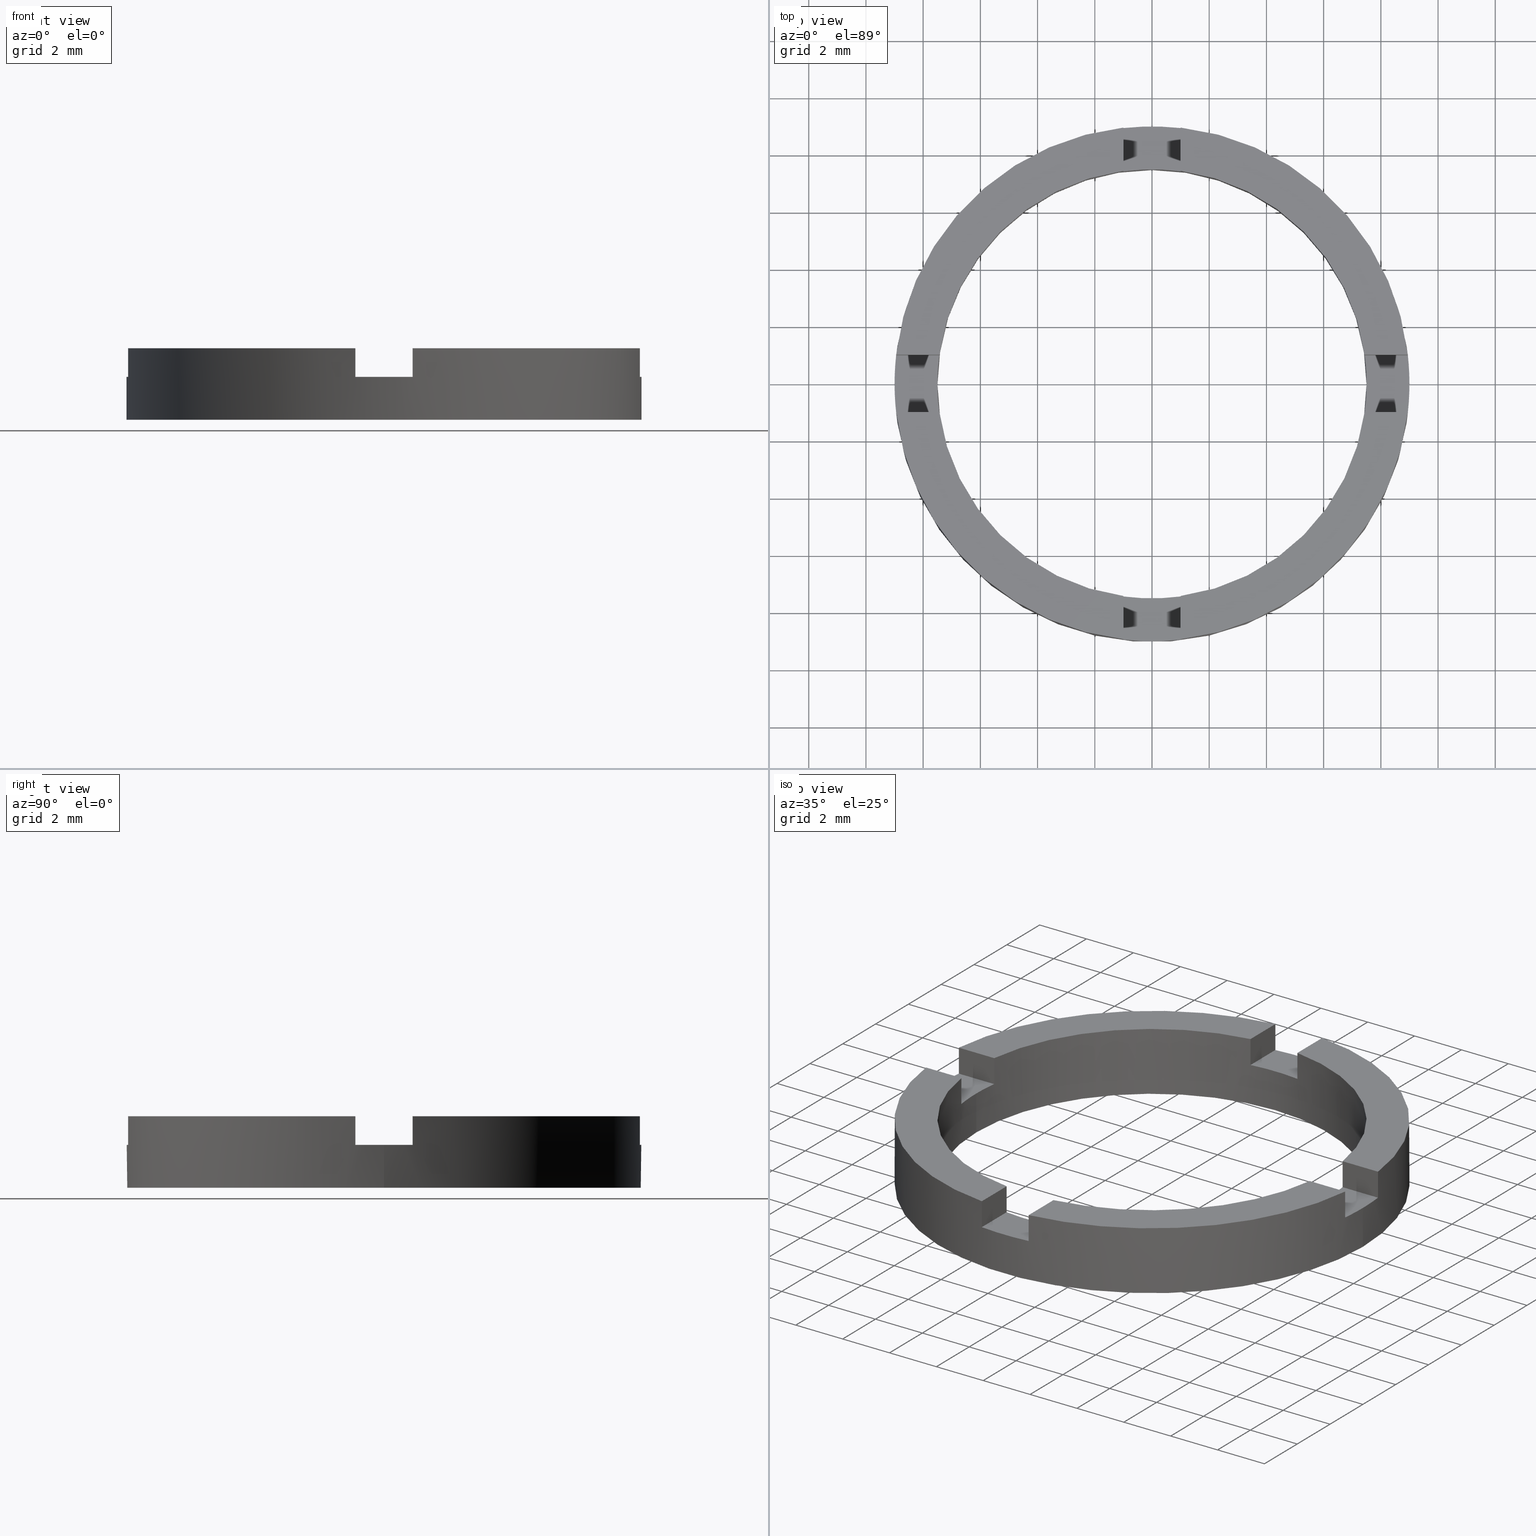
[diagram: canonical four-view strip — front | top / right | iso, engineering-drawing reading convention]
A machine part, canonical four-view strip (front | top / right | iso — engineering-drawing reading convention). The complete STEP part file that produces these views, byte-faithful:
ISO-10303-21;
HEADER;
FILE_DESCRIPTION (( 'STEP AP203' ),
    '1' );
FILE_NAME ('514043.step',
    '2024-12-26T02:32:06',
    ( 'MSI' ),
    ( '' ),
    'SwSTEP 2.0',
    'SolidWorks 2020',
    '' );
FILE_SCHEMA (( 'CONFIG_CONTROL_DESIGN' ));
ENDSEC;

DATA;
#1 = EDGE_CURVE ( 'NONE', #127, #153, #191, .T. ) ;
#2 = CARTESIAN_POINT ( 'NONE',  ( 0.000000000000000000, 0.000000000000000000, 1.500000000000000000 ) ) ;
#3 = ORIENTED_EDGE ( 'NONE', *, *, #250, .T. ) ;
#4 = AXIS2_PLACEMENT_3D ( 'NONE', #363, #245, #428 ) ;
#5 = CARTESIAN_POINT ( 'NONE',  ( -3.734474149672297082E-15, -1.000000000000001110, 1.500000000000000000 ) ) ;
#6 = AXIS2_PLACEMENT_3D ( 'NONE', #539, #782, #107 ) ;
#7 = CARTESIAN_POINT ( 'NONE',  ( 0.000000000000000000, 0.000000000000000000, 2.500000000000000000 ) ) ;
#8 = PLANE ( 'NONE',  #232 ) ;
#9 = DIRECTION ( 'NONE',  ( 1.000000000000000000, 0.000000000000000000, -0.000000000000000000 ) ) ;
#10 = CARTESIAN_POINT ( 'NONE',  ( -0.9999999999999986677, 0.000000000000000000, 2.500000000000000000 ) ) ;
#11 = EDGE_CURVE ( 'NONE', #680, #598, #438, .T. ) ;
#12 = DIRECTION ( 'NONE',  ( 0.000000000000000000, 0.000000000000000000, -1.000000000000000000 ) ) ;
#13 = DIRECTION ( 'NONE',  ( -0.000000000000000000, -0.000000000000000000, 1.000000000000000000 ) ) ;
#14 = DIRECTION ( 'NONE',  ( 0.000000000000000000, -0.000000000000000000, -1.000000000000000000 ) ) ;
#15 = CARTESIAN_POINT ( 'NONE',  ( 0.000000000000000000, 0.000000000000000000, 2.500000000000000000 ) ) ;
#16 = DIRECTION ( 'NONE',  ( -0.000000000000000000, 0.000000000000000000, 1.000000000000000000 ) ) ;
#17 = CARTESIAN_POINT ( 'NONE',  ( 3.734474149672289194E-15, 0.9999999999999988898, 1.500000000000000000 ) ) ;
#18 = EDGE_CURVE ( 'NONE', #570, #53, #423, .T. ) ;
#19 = EDGE_CURVE ( 'NONE', #147, #575, #700, .T. ) ;
#20 = APPROVAL_STATUS ( 'not_yet_approved' ) ;
#21 = CARTESIAN_POINT ( 'NONE',  ( -7.500000000000000000, 0.000000000000000000, 1.500000000000000000 ) ) ;
#22 = DIRECTION ( 'NONE',  ( -3.734474149672293138E-15, -1.000000000000000000, 0.000000000000000000 ) ) ;
#23 = CARTESIAN_POINT ( 'NONE',  ( 0.000000000000000000, 0.000000000000000000, 1.500000000000000000 ) ) ;
#24 = DIRECTION ( 'NONE',  ( -0.000000000000000000, 0.000000000000000000, 1.000000000000000000 ) ) ;
#25 = CC_DESIGN_DATE_AND_TIME_ASSIGNMENT ( #378, #473, ( #134 ) ) ;
#26 = DIRECTION ( 'NONE',  ( 0.000000000000000000, 0.000000000000000000, 1.000000000000000000 ) ) ;
#27 = EDGE_CURVE ( 'NONE', #53, #309, #710, .T. ) ;
#28 = AXIS2_PLACEMENT_3D ( 'NONE', #776, #416, #235 ) ;
#29 = CARTESIAN_POINT ( 'NONE',  ( -0.9999999999999986677, 7.433034373659253013, 1.500000000000000000 ) ) ;
#30 = CARTESIAN_POINT ( 'NONE',  ( -7.433034373659256566, -0.9999999999999733546, 1.500000000000000000 ) ) ;
#31 = DIRECTION ( 'NONE',  ( 1.000000000000000000, 0.000000000000000000, 0.000000000000000000 ) ) ;
#32 = CARTESIAN_POINT ( 'NONE',  ( 1.000000000000001332, -8.944271909999157444, 1.500000000000000000 ) ) ;
#33 = CARTESIAN_POINT ( 'NONE',  ( 0.000000000000000000, 0.000000000000000000, 0.000000000000000000 ) ) ;
#34 = AXIS2_PLACEMENT_3D ( 'NONE', #534, #26, #603 ) ;
#35 = DIRECTION ( 'NONE',  ( 1.000000000000000000, 0.000000000000000000, 0.000000000000000000 ) ) ;
#36 = AXIS2_PLACEMENT_3D ( 'NONE', #515, #268, #759 ) ;
#37 = ADVANCED_FACE ( 'NONE', ( #430 ), #295, .T. ) ;
#38 = CARTESIAN_POINT ( 'NONE',  ( 8.944271909999153891, -1.000000000000034417, 1.500000000000000000 ) ) ;
#39 = EDGE_CURVE ( 'NONE', #424, #675, #693, .T. ) ;
#40 = ORIENTED_EDGE ( 'NONE', *, *, #748, .F. ) ;
#41 = EDGE_CURVE ( 'NONE', #58, #157, #703, .T. ) ;
#42 = VERTEX_POINT ( 'NONE', #366 ) ;
#43 = ORIENTED_EDGE ( 'NONE', *, *, #505, .T. ) ;
#44 =( LENGTH_UNIT ( ) NAMED_UNIT ( * ) SI_UNIT ( .MILLI., .METRE. ) );
#45 = PLANE ( 'NONE',  #717 ) ;
#46 = ORIENTED_EDGE ( 'NONE', *, *, #233, .F. ) ;
#47 = DIRECTION ( 'NONE',  ( 0.000000000000000000, 0.000000000000000000, 1.000000000000000000 ) ) ;
#48 = ORIENTED_EDGE ( 'NONE', *, *, #1, .T. ) ;
#49 = ORIENTED_EDGE ( 'NONE', *, *, #445, .T. ) ;
#50 = VERTEX_POINT ( 'NONE', #151 ) ;
#51 = DIRECTION ( 'NONE',  ( -1.000000000000000000, 0.000000000000000000, 0.000000000000000000 ) ) ;
#52 = AXIS2_PLACEMENT_3D ( 'NONE', #63, #385, #248 ) ;
#53 = VERTEX_POINT ( 'NONE', #602 ) ;
#54 = EDGE_CURVE ( 'NONE', #675, #582, #685, .T. ) ;
#55 = CARTESIAN_POINT ( 'NONE',  ( -0.9999999999999986677, 0.000000000000000000, 1.500000000000000000 ) ) ;
#56 = PLANE ( 'NONE',  #532 ) ;
#57 = VERTEX_POINT ( 'NONE', #461 ) ;
#58 = VERTEX_POINT ( 'NONE', #222 ) ;
#59 = ADVANCED_FACE ( 'NONE', ( #418 ), #708, .T. ) ;
#60 = ORIENTED_EDGE ( 'NONE', *, *, #220, .T. ) ;
#61 = CARTESIAN_POINT ( 'NONE',  ( -0.9999999999999986677, 0.000000000000000000, 2.500000000000000000 ) ) ;
#62 = ORIENTED_EDGE ( 'NONE', *, *, #574, .F. ) ;
#63 = CARTESIAN_POINT ( 'NONE',  ( 0.000000000000000000, 0.000000000000000000, 0.000000000000000000 ) ) ;
#64 = ORIENTED_EDGE ( 'NONE', *, *, #704, .T. ) ;
#65 = ORIENTED_EDGE ( 'NONE', *, *, #195, .F. ) ;
#66 = CARTESIAN_POINT ( 'NONE',  ( 7.500000000000000000, 9.184850993605147944E-16, 0.000000000000000000 ) ) ;
#67 = ORIENTED_EDGE ( 'NONE', *, *, #292, .T. ) ;
#68 = ADVANCED_FACE ( 'NONE', ( #681 ), #723, .T. ) ;
#69 = AXIS2_PLACEMENT_3D ( 'NONE', #537, #439, #283 ) ;
#70 = DIRECTION ( 'NONE',  ( 0.000000000000000000, 0.000000000000000000, 1.000000000000000000 ) ) ;
#71 = ORIENTED_EDGE ( 'NONE', *, *, #649, .F. ) ;
#72 = CARTESIAN_POINT ( 'NONE',  ( 0.000000000000000000, 0.000000000000000000, 1.500000000000000000 ) ) ;
#73 = CARTESIAN_POINT ( 'NONE',  ( 3.734474149672289194E-15, 0.9999999999999988898, 1.500000000000000000 ) ) ;
#74 = ORIENTED_EDGE ( 'NONE', *, *, #632, .F. ) ;
#75 = ORIENTED_EDGE ( 'NONE', *, *, #686, .T. ) ;
#76 = CARTESIAN_POINT ( 'NONE',  ( -0.9999999999999986677, -8.944271909999157444, 1.500000000000000000 ) ) ;
#77 = DIRECTION ( 'NONE',  ( 1.000000000000000000, 0.000000000000000000, 0.000000000000000000 ) ) ;
#78 = ORIENTED_EDGE ( 'NONE', *, *, #538, .F. ) ;
#79 = DIRECTION ( 'NONE',  ( 1.000000000000000000, 0.000000000000000000, -0.000000000000000000 ) ) ;
#80 = EDGE_LOOP ( 'NONE', ( #596, #329, #517, #165 ) ) ;
#81 = CARTESIAN_POINT ( 'NONE',  ( 0.000000000000000000, 0.000000000000000000, 2.500000000000000000 ) ) ;
#82 = EDGE_LOOP ( 'NONE', ( #616, #146, #589, #429, #316, #304, #94, #660, #322, #89, #346, #409 ) ) ;
#83 = CLOSED_SHELL ( 'NONE', ( #750, #68, #465, #336, #516, #350, #599, #760, #673, #122, #744, #541, #502, #282, #241, #546, #357, #701, #37, #690, #59 ) ) ;
#84 = CALENDAR_DATE ( 2024, 26, 12 ) ;
#85 = EDGE_CURVE ( 'NONE', #426, #498, #198, .T. ) ;
#86 = CARTESIAN_POINT ( 'NONE',  ( -8.944271909999153891, 1.000000000000032419, 1.500000000000000000 ) ) ;
#87 = ORIENTED_EDGE ( 'NONE', *, *, #405, .T. ) ;
#88 = PERSON_AND_ORGANIZATION ( #580, #354 ) ;
#89 = ORIENTED_EDGE ( 'NONE', *, *, #447, .T. ) ;
#90 = DATE_AND_TIME ( #351, #353 ) ;
#91 = DIRECTION ( 'NONE',  ( -0.000000000000000000, 0.000000000000000000, 1.000000000000000000 ) ) ;
#92 = ORIENTED_EDGE ( 'NONE', *, *, #240, .T. ) ;
#93 = ORIENTED_EDGE ( 'NONE', *, *, #434, .T. ) ;
#94 = ORIENTED_EDGE ( 'NONE', *, *, #284, .F. ) ;
#95 = APPROVAL_DATE_TIME ( #367, #216 ) ;
#96 = CARTESIAN_POINT ( 'NONE',  ( -0.9999999999999986677, 8.944271909999157444, 2.500000000000000000 ) ) ;
#97 = ORIENTED_EDGE ( 'NONE', *, *, #777, .T. ) ;
#98 = EDGE_CURVE ( 'NONE', #42, #307, #695, .T. ) ;
#99 = PERSON_AND_ORGANIZATION ( #580, #354 ) ;
#100 = ORIENTED_EDGE ( 'NONE', *, *, #18, .F. ) ;
#101 = DATE_AND_TIME ( #630, #111 ) ;
#102 = LINE ( 'NONE', #568, #370 ) ;
#103 = DIRECTION ( 'NONE',  ( 1.000000000000000000, -3.734474149672292349E-15, 0.000000000000000000 ) ) ;
#104 = VERTEX_POINT ( 'NONE', #727 ) ;
#105 = CALENDAR_DATE ( 2024, 26, 12 ) ;
#106 = CIRCLE ( 'NONE', #342, 9.000000000000000000 ) ;
#107 = DIRECTION ( 'NONE',  ( 1.000000000000000000, 0.000000000000000000, 0.000000000000000000 ) ) ;
#108 = ORIENTED_EDGE ( 'NONE', *, *, #371, .T. ) ;
#109 = FACE_OUTER_BOUND ( 'NONE', #676, .T. ) ;
#110 = AXIS2_PLACEMENT_3D ( 'NONE', #261, #266, #768 ) ;
#111 = LOCAL_TIME ( 10, 32, 6.000000000000000000, #345 ) ;
#112 = CIRCLE ( 'NONE', #206, 9.000000000000000000 ) ;
#113 = AXIS2_PLACEMENT_3D ( 'NONE', #33, #565, #77 ) ;
#114 = FACE_OUTER_BOUND ( 'NONE', #412, .T. ) ;
#115 = EDGE_CURVE ( 'NONE', #411, #185, #186, .T. ) ;
#116 = LOCAL_TIME ( 10, 32, 6.000000000000000000, #622 ) ;
#117 = ORIENTED_EDGE ( 'NONE', *, *, #284, .T. ) ;
#118 = APPROVAL_DATE_TIME ( #101, #218 ) ;
#119 = ORIENTED_EDGE ( 'NONE', *, *, #240, .F. ) ;
#120 = COORDINATED_UNIVERSAL_TIME_OFFSET ( 8, 0, .AHEAD. ) ;
#121 = VECTOR ( 'NONE', #290, 1000.000000000000000 ) ;
#122 = ADVANCED_FACE ( 'NONE', ( #711 ), #525, .T. ) ;
#123 = ORIENTED_EDGE ( 'NONE', *, *, #445, .F. ) ;
#124 = FACE_BOUND ( 'NONE', #318, .T. ) ;
#125 = AXIS2_PLACEMENT_3D ( 'NONE', #762, #559, #177 ) ;
#126 = CIRCLE ( 'NONE', #666, 9.000000000000000000 ) ;
#127 = VERTEX_POINT ( 'NONE', #231 ) ;
#128 = FACE_OUTER_BOUND ( 'NONE', #772, .T. ) ;
#129 = CARTESIAN_POINT ( 'NONE',  ( 0.000000000000000000, 0.000000000000000000, 2.500000000000000000 ) ) ;
#130 = ORIENTED_EDGE ( 'NONE', *, *, #490, .F. ) ;
#131 = CIRCLE ( 'NONE', #213, 9.000000000000000000 ) ;
#132 = FACE_OUTER_BOUND ( 'NONE', #80, .T. ) ;
#133 = LINE ( 'NONE', #308, #631 ) ;
#134 = SECURITY_CLASSIFICATION ( '', '', #767 ) ;
#135 = CYLINDRICAL_SURFACE ( 'NONE', #256, 7.500000000000000000 ) ;
#136 = DIRECTION ( 'NONE',  ( 1.000000000000000000, 0.000000000000000000, 0.000000000000000000 ) ) ;
#137 = DIRECTION ( 'NONE',  ( -0.000000000000000000, -0.000000000000000000, 1.000000000000000000 ) ) ;
#138 = CC_DESIGN_PERSON_AND_ORGANIZATION_ASSIGNMENT ( #614, #625, ( #542 ) ) ;
#139 = DIRECTION ( 'NONE',  ( 0.000000000000000000, -0.000000000000000000, -1.000000000000000000 ) ) ;
#140 = LINE ( 'NONE', #17, #659 ) ;
#141 = EDGE_CURVE ( 'NONE', #263, #127, #159, .T. ) ;
#142 = EDGE_CURVE ( 'NONE', #50, #157, #454, .T. ) ;
#143 = DIRECTION ( 'NONE',  ( -0.000000000000000000, -0.000000000000000000, 1.000000000000000000 ) ) ;
#144 = CARTESIAN_POINT ( 'NONE',  ( -0.9999999999999986677, 7.433034373659253013, 1.500000000000000000 ) ) ;
#145 = CARTESIAN_POINT ( 'NONE',  ( 0.000000000000000000, 0.000000000000000000, 2.500000000000000000 ) ) ;
#146 = ORIENTED_EDGE ( 'NONE', *, *, #18, .T. ) ;
#147 = VERTEX_POINT ( 'NONE', #624 ) ;
#148 = DIRECTION ( 'NONE',  ( -0.000000000000000000, -0.000000000000000000, 1.000000000000000000 ) ) ;
#149 = EDGE_CURVE ( 'NONE', #176, #691, #164, .T. ) ;
#150 = EDGE_CURVE ( 'NONE', #313, #50, #689, .T. ) ;
#151 = CARTESIAN_POINT ( 'NONE',  ( 7.500000000000000000, 9.184850993605147944E-16, 1.500000000000000000 ) ) ;
#152 = DIRECTION ( 'NONE',  ( 1.000000000000000000, 0.000000000000000000, 0.000000000000000000 ) ) ;
#153 = VERTEX_POINT ( 'NONE', #719 ) ;
#154 = EDGE_LOOP ( 'NONE', ( #449, #200, #333, #420 ) ) ;
#155 = EDGE_LOOP ( 'NONE', ( #431, #340, #40, #604 ) ) ;
#156 = CARTESIAN_POINT ( 'NONE',  ( -0.9999999999999986677, -7.433034373659253013, 2.500000000000000000 ) ) ;
#157 = VERTEX_POINT ( 'NONE', #66 ) ;
#158 = APPLICATION_PROTOCOL_DEFINITION ( 'international standard', 'config_control_design', 1994, #230 ) ;
#159 = LINE ( 'NONE', #303, #162 ) ;
#160 = DIRECTION ( 'NONE',  ( -3.734474149672293138E-15, -1.000000000000000000, 0.000000000000000000 ) ) ;
#161 = VERTEX_POINT ( 'NONE', #487 ) ;
#162 = VECTOR ( 'NONE', #635, 1000.000000000000000 ) ;
#163 = EDGE_LOOP ( 'NONE', ( #238, #298, #587, #239 ) ) ;
#164 = LINE ( 'NONE', #270, #712 ) ;
#165 = ORIENTED_EDGE ( 'NONE', *, *, #343, .F. ) ;
#166 = CARTESIAN_POINT ( 'NONE',  ( -8.944271909999160997, -0.9999999999999676925, 1.500000000000000000 ) ) ;
#167 = ORIENTED_EDGE ( 'NONE', *, *, #490, .T. ) ;
#168 = AXIS2_PLACEMENT_3D ( 'NONE', #265, #260, #305 ) ;
#169 = VERTEX_POINT ( 'NONE', #156 ) ;
#170 = APPLICATION_PROTOCOL_DEFINITION ( 'international standard', 'config_control_design', 1994, #394 ) ;
#171 = VECTOR ( 'NONE', #566, 1000.000000000000000 ) ;
#172 = CARTESIAN_POINT ( 'NONE',  ( 1.000000000000001332, 8.944271909999157444, 1.500000000000000000 ) ) ;
#173 = ORIENTED_EDGE ( 'NONE', *, *, #576, .T. ) ;
#174 = LINE ( 'NONE', #166, #193 ) ;
#175 = EDGE_LOOP ( 'NONE', ( #123, #683, #75, #97, #317, #64 ) ) ;
#176 = VERTEX_POINT ( 'NONE', #645 ) ;
#177 = DIRECTION ( 'NONE',  ( 0.000000000000000000, 0.000000000000000000, -1.000000000000000000 ) ) ;
#178 = ORIENTED_EDGE ( 'NONE', *, *, #458, .T. ) ;
#179 = CARTESIAN_POINT ( 'NONE',  ( -0.9999999999999986677, 0.000000000000000000, 1.500000000000000000 ) ) ;
#180 = VECTOR ( 'NONE', #321, 1000.000000000000000 ) ;
#181 = PLANE ( 'NONE',  #522 ) ;
#182 = EDGE_LOOP ( 'NONE', ( #698, #663, #178, #338 ) ) ;
#183 = LINE ( 'NONE', #774, #448 ) ;
#184 = DIRECTION ( 'NONE',  ( 0.000000000000000000, 0.000000000000000000, 1.000000000000000000 ) ) ;
#185 = VERTEX_POINT ( 'NONE', #531 ) ;
#186 = LINE ( 'NONE', #76, #427 ) ;
#187 = CARTESIAN_POINT ( 'NONE',  ( -0.9999999999999986677, -7.433034373659253013, 1.500000000000000000 ) ) ;
#188 = LINE ( 'NONE', #229, #441 ) ;
#189 = CARTESIAN_POINT ( 'NONE',  ( 0.000000000000000000, 0.000000000000000000, 2.500000000000000000 ) ) ;
#190 = LINE ( 'NONE', #521, #453 ) ;
#191 = LINE ( 'NONE', #228, #180 ) ;
#192 = CARTESIAN_POINT ( 'NONE',  ( 9.000000000000000000, 1.102182119232617714E-15, 1.500000000000000000 ) ) ;
#193 = VECTOR ( 'NONE', #733, 1000.000000000000000 ) ;
#194 = FACE_OUTER_BOUND ( 'NONE', #175, .T. ) ;
#195 = EDGE_CURVE ( 'NONE', #422, #161, #174, .T. ) ;
#196 = DIRECTION ( 'NONE',  ( 1.000000000000000000, 0.000000000000000000, 0.000000000000000000 ) ) ;
#197 = EDGE_CURVE ( 'NONE', #535, #424, #451, .T. ) ;
#198 = CIRCLE ( 'NONE', #761, 7.500000000000000000 ) ;
#199 = DIRECTION ( 'NONE',  ( 1.000000000000000000, -3.734474149672292349E-15, 0.000000000000000000 ) ) ;
#200 = ORIENTED_EDGE ( 'NONE', *, *, #390, .F. ) ;
#201 = CIRCLE ( 'NONE', #6, 7.500000000000000000 ) ;
#202 = LINE ( 'NONE', #528, #478 ) ;
#203 = LINE ( 'NONE', #29, #741 ) ;
#204 = VECTOR ( 'NONE', #137, 1000.000000000000000 ) ;
#205 = LINE ( 'NONE', #32, #736 ) ;
#206 = AXIS2_PLACEMENT_3D ( 'NONE', #450, #294, #757 ) ;
#207 = EDGE_CURVE ( 'NONE', #718, #176, #188, .T. ) ;
#208 = LINE ( 'NONE', #601, #204 ) ;
#209 = FACE_OUTER_BOUND ( 'NONE', #155, .T. ) ;
#210 = CIRCLE ( 'NONE', #356, 7.500000000000000000 ) ;
#211 = VECTOR ( 'NONE', #734, 1000.000000000000000 ) ;
#212 = DIRECTION ( 'NONE',  ( 1.000000000000000000, 0.000000000000000000, 0.000000000000000000 ) ) ;
#213 = AXIS2_PLACEMENT_3D ( 'NONE', #536, #781, #662 ) ;
#214 = DIRECTION ( 'NONE',  ( -0.000000000000000000, 0.000000000000000000, 1.000000000000000000 ) ) ;
#215 = DIRECTION ( 'NONE',  ( 1.000000000000000000, 1.065814103640150279E-14, 0.000000000000000000 ) ) ;
#216 = APPROVAL ( #20, 'δָ��' ) ;
#217 = CARTESIAN_POINT ( 'NONE',  ( 0.000000000000000000, 0.000000000000000000, 2.500000000000000000 ) ) ;
#218 = APPROVAL ( #484, 'δָ��' ) ;
#219 = DIRECTION ( 'NONE',  ( 1.000000000000000000, 0.000000000000000000, 0.000000000000000000 ) ) ;
#220 = EDGE_CURVE ( 'NONE', #435, #153, #183, .T. ) ;
#221 = PLANE ( 'NONE',  #511 ) ;
#222 = CARTESIAN_POINT ( 'NONE',  ( -7.500000000000000000, 0.000000000000000000, 0.000000000000000000 ) ) ;
#223 = CARTESIAN_POINT ( 'NONE',  ( 1.000000000000001332, 8.944271909999157444, 1.500000000000000000 ) ) ;
#224 = ORIENTED_EDGE ( 'NONE', *, *, #460, .F. ) ;
#225 = ORIENTED_EDGE ( 'NONE', *, *, #227, .T. ) ;
#226 = APPROVAL_ROLE ( '' ) ;
#227 = EDGE_CURVE ( 'NONE', #302, #153, #442, .T. ) ;
#228 = CARTESIAN_POINT ( 'NONE',  ( 3.734474149672289194E-15, 0.9999999999999988898, 2.500000000000000000 ) ) ;
#229 = CARTESIAN_POINT ( 'NONE',  ( 7.433034373659249461, -1.000000000000028866, 1.500000000000000000 ) ) ;
#230 = APPLICATION_CONTEXT ( 'configuration controlled 3d designs of mechanical parts and assemblies' ) ;
#231 = CARTESIAN_POINT ( 'NONE',  ( -8.944271909999153891, 1.000000000000032419, 2.500000000000000000 ) ) ;
#232 = AXIS2_PLACEMENT_3D ( 'NONE', #488, #24, #271 ) ;
#233 = EDGE_CURVE ( 'NONE', #575, #169, #720, .T. ) ;
#234 = CARTESIAN_POINT ( 'NONE',  ( 0.000000000000000000, 0.000000000000000000, 1.500000000000000000 ) ) ;
#235 = DIRECTION ( 'NONE',  ( -1.000000000000000000, 0.000000000000000000, 0.000000000000000000 ) ) ;
#236 = PRODUCT_DEFINITION_SHAPE ( 'NONE', 'NONE',  #530 ) ;
#237 = DIRECTION ( 'NONE',  ( -0.000000000000000000, -0.000000000000000000, 1.000000000000000000 ) ) ;
#238 = ORIENTED_EDGE ( 'NONE', *, *, #275, .F. ) ;
#239 = ORIENTED_EDGE ( 'NONE', *, *, #39, .T. ) ;
#240 = EDGE_CURVE ( 'NONE', #147, #300, #190, .T. ) ;
#241 = ADVANCED_FACE ( 'NONE', ( #194 ), #8, .T. ) ;
#242 = ORIENTED_EDGE ( 'NONE', *, *, #244, .F. ) ;
#243 = PRODUCT_RELATED_PRODUCT_CATEGORY ( 'detail', '', ( #542 ) ) ;
#244 = EDGE_CURVE ( 'NONE', #583, #422, #476, .T. ) ;
#245 = DIRECTION ( 'NONE',  ( 1.000000000000000000, 0.000000000000000000, 0.000000000000000000 ) ) ;
#246 = EDGE_LOOP ( 'NONE', ( #380, #595, #705, #725 ) ) ;
#247 = CARTESIAN_POINT ( 'NONE',  ( -0.9999999999999986677, 8.944271909999157444, 1.500000000000000000 ) ) ;
#248 = DIRECTION ( 'NONE',  ( 1.000000000000000000, 0.000000000000000000, 0.000000000000000000 ) ) ;
#249 = EDGE_CURVE ( 'NONE', #104, #300, #728, .T. ) ;
#250 = EDGE_CURVE ( 'NONE', #692, #302, #203, .T. ) ;
#251 = DIRECTION ( 'NONE',  ( 0.000000000000000000, -0.000000000000000000, -1.000000000000000000 ) ) ;
#252 = ORIENTED_EDGE ( 'NONE', *, *, #115, .T. ) ;
#253 = CARTESIAN_POINT ( 'NONE',  ( 0.000000000000000000, 0.000000000000000000, 2.500000000000000000 ) ) ;
#254 = CARTESIAN_POINT ( 'NONE',  ( 1.000000000000001332, 7.433034373659253013, 1.500000000000000000 ) ) ;
#255 = CARTESIAN_POINT ( 'NONE',  ( 0.000000000000000000, 0.000000000000000000, 0.000000000000000000 ) ) ;
#256 = AXIS2_PLACEMENT_3D ( 'NONE', #499, #540, #552 ) ;
#257 = CARTESIAN_POINT ( 'NONE',  ( -7.433034373659249461, 1.000000000000026645, 1.500000000000000000 ) ) ;
#258 = AXIS2_PLACEMENT_3D ( 'NONE', #557, #722, #79 ) ;
#259 = DIRECTION ( 'NONE',  ( -0.000000000000000000, -0.000000000000000000, 1.000000000000000000 ) ) ;
#260 = DIRECTION ( 'NONE',  ( 0.000000000000000000, 0.000000000000000000, 1.000000000000000000 ) ) ;
#261 = CARTESIAN_POINT ( 'NONE',  ( 0.000000000000000000, 0.000000000000000000, 0.000000000000000000 ) ) ;
#262 = DIRECTION ( 'NONE',  ( -0.000000000000000000, 0.000000000000000000, 1.000000000000000000 ) ) ;
#263 = VERTEX_POINT ( 'NONE', #86 ) ;
#264 = CARTESIAN_POINT ( 'NONE',  ( 8.944271909999160997, 0.9999999999999655831, 1.500000000000000000 ) ) ;
#265 = CARTESIAN_POINT ( 'NONE',  ( 0.000000000000000000, 0.000000000000000000, 2.500000000000000000 ) ) ;
#266 = DIRECTION ( 'NONE',  ( 0.000000000000000000, 0.000000000000000000, 1.000000000000000000 ) ) ;
#267 = EDGE_CURVE ( 'NONE', #313, #426, #467, .T. ) ;
#268 = DIRECTION ( 'NONE',  ( 0.000000000000000000, -0.000000000000000000, -1.000000000000000000 ) ) ;
#269 = AXIS2_PLACEMENT_3D ( 'NONE', #2, #251, #289 ) ;
#270 = CARTESIAN_POINT ( 'NONE',  ( -3.734474149672297082E-15, -1.000000000000001110, 2.500000000000000000 ) ) ;
#271 = DIRECTION ( 'NONE',  ( 1.000000000000000000, 0.000000000000000000, 0.000000000000000000 ) ) ;
#272 = CARTESIAN_POINT ( 'NONE',  ( -8.944271909999160997, -0.9999999999999676925, 1.500000000000000000 ) ) ;
#273 = CARTESIAN_POINT ( 'NONE',  ( 0.000000000000000000, 0.000000000000000000, 2.500000000000000000 ) ) ;
#274 = AXIS2_PLACEMENT_3D ( 'NONE', #529, #91, #152 ) ;
#275 = EDGE_CURVE ( 'NONE', #692, #675, #470, .T. ) ;
#276 = CARTESIAN_POINT ( 'NONE',  ( 1.000000000000001332, 0.000000000000000000, 1.500000000000000000 ) ) ;
#277 = PLANE ( 'NONE',  #417 ) ;
#278 = CARTESIAN_POINT ( 'NONE',  ( -3.734474149672297082E-15, -1.000000000000001110, 1.500000000000000000 ) ) ;
#279 = CC_DESIGN_APPROVAL ( #218, ( #549 ) ) ;
#280 = AXIS2_PLACEMENT_3D ( 'NONE', #234, #262, #408 ) ;
#281 = MANIFOLD_SOLID_BREP ( '�г�-����1', #83 ) ;
#282 = ADVANCED_FACE ( 'NONE', ( #472 ), #331, .F. ) ;
#283 = DIRECTION ( 'NONE',  ( 1.000000000000000000, 0.000000000000000000, 0.000000000000000000 ) ) ;
#284 = EDGE_CURVE ( 'NONE', #582, #127, #735, .T. ) ;
#285 = CC_DESIGN_APPROVAL ( #433, ( #530 ) ) ;
#286 = EDGE_CURVE ( 'NONE', #300, #176, #201, .T. ) ;
#287 = DIRECTION ( 'NONE',  ( -0.000000000000000000, -0.000000000000000000, -1.000000000000000000 ) ) ;
#288 = CARTESIAN_POINT ( 'NONE',  ( -0.9999999999999986677, 8.944271909999157444, 1.500000000000000000 ) ) ;
#289 = DIRECTION ( 'NONE',  ( 1.000000000000000000, 0.000000000000000000, 0.000000000000000000 ) ) ;
#290 = DIRECTION ( 'NONE',  ( 1.000000000000000000, -3.734474149672293138E-15, 0.000000000000000000 ) ) ;
#291 = AXIS2_PLACEMENT_3D ( 'NONE', #588, #475, #518 ) ;
#292 = EDGE_CURVE ( 'NONE', #436, #104, #205, .T. ) ;
#293 = PERSON_AND_ORGANIZATION_ROLE ( 'creator' ) ;
#294 = DIRECTION ( 'NONE',  ( -0.000000000000000000, 0.000000000000000000, 1.000000000000000000 ) ) ;
#295 = PLANE ( 'NONE',  #597 ) ;
#296 = PLANE ( 'NONE',  #586 ) ;
#297 = DIRECTION ( 'NONE',  ( 0.000000000000000000, 1.000000000000000000, -0.000000000000000000 ) ) ;
#298 = ORIENTED_EDGE ( 'NONE', *, *, #512, .T. ) ;
#299 = CARTESIAN_POINT ( 'NONE',  ( -0.9999999999999986677, -8.944271909999157444, 1.500000000000000000 ) ) ;
#300 = VERTEX_POINT ( 'NONE', #324 ) ;
#301 = AXIS2_PLACEMENT_3D ( 'NONE', #72, #139, #215 ) ;
#302 = VERTEX_POINT ( 'NONE', #421 ) ;
#303 = CARTESIAN_POINT ( 'NONE',  ( -8.944271909999153891, 1.000000000000032419, 1.500000000000000000 ) ) ;
#304 = ORIENTED_EDGE ( 'NONE', *, *, #141, .T. ) ;
#305 = DIRECTION ( 'NONE',  ( 1.000000000000000000, 0.000000000000000000, 0.000000000000000000 ) ) ;
#306 = PERSON_AND_ORGANIZATION_ROLE ( 'creator' ) ;
#307 = VERTEX_POINT ( 'NONE', #21 ) ;
#308 = CARTESIAN_POINT ( 'NONE',  ( 1.000000000000001332, 0.000000000000000000, 2.500000000000000000 ) ) ;
#309 = VERTEX_POINT ( 'NONE', #485 ) ;
#310 = ORIENTED_EDGE ( 'NONE', *, *, #343, .T. ) ;
#311 = DIRECTION ( 'NONE',  ( 1.000000000000000000, -1.154631945610162802E-14, 0.000000000000000000 ) ) ;
#312 = ORIENTED_EDGE ( 'NONE', *, *, #149, .F. ) ;
#313 = VERTEX_POINT ( 'NONE', #640 ) ;
#314 = DIRECTION ( 'NONE',  ( 1.000000000000000000, -3.734474149672293138E-15, 0.000000000000000000 ) ) ;
#315 = EDGE_LOOP ( 'NONE', ( #337, #606, #569, #629 ) ) ;
#316 = ORIENTED_EDGE ( 'NONE', *, *, #561, .F. ) ;
#317 = ORIENTED_EDGE ( 'NONE', *, *, #684, .T. ) ;
#318 = EDGE_LOOP ( 'NONE', ( #751, #572 ) ) ;
#319 = CARTESIAN_POINT ( 'NONE',  ( 8.944271909999160997, 0.9999999999999655831, 2.500000000000000000 ) ) ;
#320 = ORIENTED_EDGE ( 'NONE', *, *, #207, .F. ) ;
#321 = DIRECTION ( 'NONE',  ( 1.000000000000000000, -3.734474149672293138E-15, 0.000000000000000000 ) ) ;
#322 = ORIENTED_EDGE ( 'NONE', *, *, #39, .F. ) ;
#323 = EDGE_LOOP ( 'NONE', ( #78, #419, #108, #607 ) ) ;
#324 = CARTESIAN_POINT ( 'NONE',  ( 1.000000000000001332, -7.433034373659253013, 2.500000000000000000 ) ) ;
#325 = ORIENTED_EDGE ( 'NONE', *, *, #41, .F. ) ;
#326 = EDGE_CURVE ( 'NONE', #583, #309, #202, .T. ) ;
#327 = AXIS2_PLACEMENT_3D ( 'NONE', #753, #287, #51 ) ;
#328 = ORIENTED_EDGE ( 'NONE', *, *, #743, .T. ) ;
#329 = ORIENTED_EDGE ( 'NONE', *, *, #652, .T. ) ;
#330 = EDGE_LOOP ( 'NONE', ( #654, #119, #62, #67 ) ) ;
#331 = PLANE ( 'NONE',  #543 ) ;
#332 = ORIENTED_EDGE ( 'NONE', *, *, #141, .F. ) ;
#333 = ORIENTED_EDGE ( 'NONE', *, *, #777, .F. ) ;
#334 = ORIENTED_EDGE ( 'NONE', *, *, #19, .F. ) ;
#335 = LOCAL_TIME ( 10, 32, 6.000000000000000000, #120 ) ;
#336 = ADVANCED_FACE ( 'NONE', ( #738 ), #395, .T. ) ;
#337 = ORIENTED_EDGE ( 'NONE', *, *, #392, .F. ) ;
#338 = ORIENTED_EDGE ( 'NONE', *, *, #233, .T. ) ;
#339 = APPROVAL_DATE_TIME ( #605, #433 ) ;
#340 = ORIENTED_EDGE ( 'NONE', *, *, #576, .F. ) ;
#341 = PERSON_AND_ORGANIZATION ( #580, #354 ) ;
#342 = AXIS2_PLACEMENT_3D ( 'NONE', #217, #612, #136 ) ;
#343 = EDGE_CURVE ( 'NONE', #57, #169, #462, .T. ) ;
#344 = ORIENTED_EDGE ( 'NONE', *, *, #98, .F. ) ;
#345 = COORDINATED_UNIVERSAL_TIME_OFFSET ( 8, 0, .AHEAD. ) ;
#346 = ORIENTED_EDGE ( 'NONE', *, *, #755, .F. ) ;
#347 = SHAPE_DEFINITION_REPRESENTATION ( #236, #670 ) ;
#348 = CARTESIAN_POINT ( 'NONE',  ( 0.000000000000000000, 0.000000000000000000, 0.000000000000000000 ) ) ;
#349 = ORIENTED_EDGE ( 'NONE', *, *, #267, .F. ) ;
#350 = ADVANCED_FACE ( 'NONE', ( #463 ), #277, .T. ) ;
#351 = CALENDAR_DATE ( 2024, 26, 12 ) ;
#352 = COORDINATED_UNIVERSAL_TIME_OFFSET ( 8, 0, .AHEAD. ) ;
#353 = LOCAL_TIME ( 10, 32, 6.000000000000000000, #352 ) ;
#354 = ORGANIZATION ( 'δָ��', 'δָ��', '' ) ;
#355 = DIRECTION ( 'NONE',  ( -0.000000000000000000, 0.000000000000000000, 1.000000000000000000 ) ) ;
#356 = AXIS2_PLACEMENT_3D ( 'NONE', #489, #563, #724 ) ;
#357 = ADVANCED_FACE ( 'NONE', ( #209 ), #45, .F. ) ;
#358 = LINE ( 'NONE', #593, #388 ) ;
#359 = ORIENTED_EDGE ( 'NONE', *, *, #85, .T. ) ;
#360 = LINE ( 'NONE', #61, #665 ) ;
#361 = EDGE_LOOP ( 'NONE', ( #613, #592, #117, #48 ) ) ;
#362 = LINE ( 'NONE', #30, #398 ) ;
#363 = CARTESIAN_POINT ( 'NONE',  ( 1.000000000000001332, 0.000000000000000000, 1.500000000000000000 ) ) ;
#364 = COORDINATED_UNIVERSAL_TIME_OFFSET ( 8, 0, .AHEAD. ) ;
#365 = CIRCLE ( 'NONE', #34, 9.000000000000000000 ) ;
#366 = CARTESIAN_POINT ( 'NONE',  ( -7.433034373659256566, -0.9999999999999733546, 1.500000000000000000 ) ) ;
#367 = DATE_AND_TIME ( #105, #646 ) ;
#368 = VECTOR ( 'NONE', #148, 1000.000000000000000 ) ;
#369 = ORIENTED_EDGE ( 'NONE', *, *, #405, .F. ) ;
#370 = VECTOR ( 'NONE', #103, 1000.000000000000000 ) ;
#371 = EDGE_CURVE ( 'NONE', #426, #598, #731, .T. ) ;
#372 = CARTESIAN_POINT ( 'NONE',  ( 8.944271909999153891, -1.000000000000034417, 2.500000000000000000 ) ) ;
#373 = ORIENTED_EDGE ( 'NONE', *, *, #286, .F. ) ;
#374 = PERSON_AND_ORGANIZATION ( #580, #354 ) ;
#375 = DIRECTION ( 'NONE',  ( -0.000000000000000000, -0.000000000000000000, 1.000000000000000000 ) ) ;
#376 = CARTESIAN_POINT ( 'NONE',  ( 1.000000000000001332, -8.944271909999157444, 1.500000000000000000 ) ) ;
#377 = CIRCLE ( 'NONE', #113, 7.500000000000000000 ) ;
#378 = DATE_AND_TIME ( #617, #116 ) ;
#379 = FACE_OUTER_BOUND ( 'NONE', #246, .T. ) ;
#380 = ORIENTED_EDGE ( 'NONE', *, *, #458, .F. ) ;
#381 = PERSON_AND_ORGANIZATION_ROLE ( 'classification_officer' ) ;
#382 = VECTOR ( 'NONE', #558, 1000.000000000000000 ) ;
#383 = PLANE ( 'NONE',  #291 ) ;
#384 = FACE_OUTER_BOUND ( 'NONE', #707, .T. ) ;
#385 = DIRECTION ( 'NONE',  ( 0.000000000000000000, 0.000000000000000000, 1.000000000000000000 ) ) ;
#386 = CARTESIAN_POINT ( 'NONE',  ( 3.734474149672289194E-15, 0.9999999999999988898, 1.500000000000000000 ) ) ;
#387 = CC_DESIGN_APPROVAL ( #216, ( #134 ) ) ;
#388 = VECTOR ( 'NONE', #747, 1000.000000000000000 ) ;
#389 = LINE ( 'NONE', #397, #382 ) ;
#390 = EDGE_CURVE ( 'NONE', #682, #691, #208, .T. ) ;
#391 = DIRECTION ( 'NONE',  ( -0.000000000000000000, -0.000000000000000000, 1.000000000000000000 ) ) ;
#392 = EDGE_CURVE ( 'NONE', #302, #582, #471, .T. ) ;
#393 = FACE_OUTER_BOUND ( 'NONE', #577, .T. ) ;
#394 = APPLICATION_CONTEXT ( 'configuration controlled 3d designs of mechanical parts and assemblies' ) ;
#395 = PLANE ( 'NONE',  #258 ) ;
#396 = LINE ( 'NONE', #386, #121 ) ;
#397 = CARTESIAN_POINT ( 'NONE',  ( -0.9999999999999986677, 0.000000000000000000, 1.500000000000000000 ) ) ;
#398 = VECTOR ( 'NONE', #742, 1000.000000000000000 ) ;
#399 = CIRCLE ( 'NONE', #745, 9.000000000000000000 ) ;
#400 = CARTESIAN_POINT ( 'NONE',  ( 7.500000000000000000, 9.184850993605147944E-16, 2.500000000000000000 ) ) ;
#401 = LINE ( 'NONE', #276, #626 ) ;
#402 = DATE_TIME_ROLE ( 'creation_date' ) ;
#403 = DIRECTION ( 'NONE',  ( 0.000000000000000000, 1.000000000000000000, -0.000000000000000000 ) ) ;
#404 = AXIS2_PLACEMENT_3D ( 'NONE', #23, #14, #311 ) ;
#405 = EDGE_CURVE ( 'NONE', #307, #435, #210, .T. ) ;
#406 = CARTESIAN_POINT ( 'NONE',  ( 1.000000000000001332, 0.000000000000000000, 2.500000000000000000 ) ) ;
#407 = ORIENTED_EDGE ( 'NONE', *, *, #748, .T. ) ;
#408 = DIRECTION ( 'NONE',  ( 1.000000000000000000, 0.000000000000000000, 0.000000000000000000 ) ) ;
#409 = ORIENTED_EDGE ( 'NONE', *, *, #11, .F. ) ;
#410 = DIRECTION ( 'NONE',  ( 0.000000000000000000, 0.000000000000000000, 1.000000000000000000 ) ) ;
#411 = VERTEX_POINT ( 'NONE', #299 ) ;
#412 = EDGE_LOOP ( 'NONE', ( #100, #778, #573, #773, #609, #224, #252, #506, #65, #242, #591, #43 ) ) ;
#413 = CC_DESIGN_PERSON_AND_ORGANIZATION_ASSIGNMENT ( #643, #293, ( #549 ) ) ;
#414 = ORIENTED_EDGE ( 'NONE', *, *, #286, .T. ) ;
#415 = CYLINDRICAL_SURFACE ( 'NONE', #327, 7.500000000000000000 ) ;
#416 = DIRECTION ( 'NONE',  ( -0.000000000000000000, -0.000000000000000000, -1.000000000000000000 ) ) ;
#417 = AXIS2_PLACEMENT_3D ( 'NONE', #189, #184, #491 ) ;
#418 = FACE_OUTER_BOUND ( 'NONE', #163, .T. ) ;
#419 = ORIENTED_EDGE ( 'NONE', *, *, #85, .F. ) ;
#420 = ORIENTED_EDGE ( 'NONE', *, *, #207, .T. ) ;
#421 = CARTESIAN_POINT ( 'NONE',  ( -0.9999999999999986677, 7.433034373659253013, 2.500000000000000000 ) ) ;
#422 = VERTEX_POINT ( 'NONE', #272 ) ;
#423 = LINE ( 'NONE', #739, #443 ) ;
#424 = VERTEX_POINT ( 'NONE', #223 ) ;
#425 = VECTOR ( 'NONE', #375, 1000.000000000000000 ) ;
#426 = VERTEX_POINT ( 'NONE', #620 ) ;
#427 = VECTOR ( 'NONE', #259, 1000.000000000000000 ) ;
#428 = DIRECTION ( 'NONE',  ( 0.000000000000000000, 0.000000000000000000, -1.000000000000000000 ) ) ;
#429 = ORIENTED_EDGE ( 'NONE', *, *, #326, .F. ) ;
#430 = FACE_OUTER_BOUND ( 'NONE', #315, .T. ) ;
#431 = ORIENTED_EDGE ( 'NONE', *, *, #627, .T. ) ;
#432 = EDGE_LOOP ( 'NONE', ( #642, #524 ) ) ;
#433 = APPROVAL ( #721, 'δָ��' ) ;
#434 = EDGE_CURVE ( 'NONE', #307, #58, #457, .T. ) ;
#435 = VERTEX_POINT ( 'NONE', #257 ) ;
#436 = VERTEX_POINT ( 'NONE', #376 ) ;
#437 = AXIS2_PLACEMENT_3D ( 'NONE', #510, #355, #545 ) ;
#438 = LINE ( 'NONE', #264, #171 ) ;
#439 = DIRECTION ( 'NONE',  ( 0.000000000000000000, -0.000000000000000000, -1.000000000000000000 ) ) ;
#440 = ORIENTED_EDGE ( 'NONE', *, *, #1, .F. ) ;
#441 = VECTOR ( 'NONE', #391, 1000.000000000000000 ) ;
#442 = CIRCLE ( 'NONE', #168, 7.500000000000000000 ) ;
#443 = VECTOR ( 'NONE', #779, 1000.000000000000000 ) ;
#444 = VECTOR ( 'NONE', #520, 1000.000000000000000 ) ;
#445 = EDGE_CURVE ( 'NONE', #313, #680, #396, .T. ) ;
#446 = VECTOR ( 'NONE', #297, 1000.000000000000000 ) ;
#447 = EDGE_CURVE ( 'NONE', #424, #495, #637, .T. ) ;
#448 = VECTOR ( 'NONE', #766, 1000.000000000000000 ) ;
#449 = ORIENTED_EDGE ( 'NONE', *, *, #149, .T. ) ;
#450 = CARTESIAN_POINT ( 'NONE',  ( 0.000000000000000000, 0.000000000000000000, 1.500000000000000000 ) ) ;
#451 = LINE ( 'NONE', #564, #446 ) ;
#452 = UNCERTAINTY_MEASURE_WITH_UNIT (LENGTH_MEASURE( 1.000000000000000082E-05 ), #44, 'distance_accuracy_value', 'NONE');
#453 = VECTOR ( 'NONE', #752, 1000.000000000000000 ) ;
#454 = LINE ( 'NONE', #400, #444 ) ;
#455 = EDGE_LOOP ( 'NONE', ( #312, #373, #749, #328 ) ) ;
#456 = CARTESIAN_POINT ( 'NONE',  ( 1.000000000000001332, 7.433034373659253013, 1.500000000000000000 ) ) ;
#457 = LINE ( 'NONE', #699, #726 ) ;
#458 = EDGE_CURVE ( 'NONE', #411, #575, #389, .T. ) ;
#459 = DIRECTION ( 'NONE',  ( 1.000000000000000000, -3.734474149672293138E-15, 0.000000000000000000 ) ) ;
#460 = EDGE_CURVE ( 'NONE', #411, #436, #634, .T. ) ;
#461 = CARTESIAN_POINT ( 'NONE',  ( -7.433034373659256566, -0.9999999999999733546, 2.500000000000000000 ) ) ;
#462 = CIRCLE ( 'NONE', #497, 7.500000000000000000 ) ;
#463 = FACE_OUTER_BOUND ( 'NONE', #455, .T. ) ;
#464 = VECTOR ( 'NONE', #459, 1000.000000000000000 ) ;
#465 = ADVANCED_FACE ( 'NONE', ( #664 ), #770, .T. ) ;
#466 = PLANE ( 'NONE',  #756 ) ;
#467 = LINE ( 'NONE', #775, #732 ) ;
#468 = DIRECTION ( 'NONE',  ( 1.000000000000000000, 0.000000000000000000, 0.000000000000000000 ) ) ;
#469 = DIRECTION ( 'NONE',  ( 0.000000000000000000, 1.000000000000000000, -0.000000000000000000 ) ) ;
#470 = LINE ( 'NONE', #179, #740 ) ;
#471 = LINE ( 'NONE', #10, #729 ) ;
#472 = FACE_OUTER_BOUND ( 'NONE', #154, .T. ) ;
#473 = DATE_TIME_ROLE ( 'classification_date' ) ;
#474 = AXIS2_PLACEMENT_3D ( 'NONE', #348, #519, #764 ) ;
#475 = DIRECTION ( 'NONE',  ( 1.000000000000000000, 0.000000000000000000, 0.000000000000000000 ) ) ;
#476 = CIRCLE ( 'NONE', #730, 9.000000000000000000 ) ;
#477 = DIRECTION ( 'NONE',  ( -0.000000000000000000, -0.000000000000000000, -1.000000000000000000 ) ) ;
#478 = VECTOR ( 'NONE', #562, 1000.000000000000000 ) ;
#479 = CARTESIAN_POINT ( 'NONE',  ( -0.9999999999999986677, -7.433034373659253013, 1.500000000000000000 ) ) ;
#480 = MECHANICAL_CONTEXT ( 'NONE', #394, 'mechanical' ) ;
#481 = CARTESIAN_POINT ( 'NONE',  ( 1.000000000000001332, 7.433034373659253013, 2.500000000000000000 ) ) ;
#482 = CC_DESIGN_PERSON_AND_ORGANIZATION_ASSIGNMENT ( #88, #381, ( #134 ) ) ;
#483 = DIRECTION ( 'NONE',  ( -0.000000000000000000, -0.000000000000000000, 1.000000000000000000 ) ) ;
#484 = APPROVAL_STATUS ( 'not_yet_approved' ) ;
#485 = CARTESIAN_POINT ( 'NONE',  ( -9.000000000000000000, 0.000000000000000000, 0.000000000000000000 ) ) ;
#486 = PLANE ( 'NONE',  #274 ) ;
#487 = CARTESIAN_POINT ( 'NONE',  ( -8.944271909999160997, -0.9999999999999676925, 2.500000000000000000 ) ) ;
#488 = CARTESIAN_POINT ( 'NONE',  ( 0.000000000000000000, 0.000000000000000000, 1.500000000000000000 ) ) ;
#489 = CARTESIAN_POINT ( 'NONE',  ( 0.000000000000000000, 0.000000000000000000, 1.500000000000000000 ) ) ;
#490 = EDGE_CURVE ( 'NONE', #263, #435, #140, .T. ) ;
#491 = DIRECTION ( 'NONE',  ( 1.000000000000000000, 0.000000000000000000, -0.000000000000000000 ) ) ;
#492 = DIRECTION ( 'NONE',  ( 0.000000000000000000, 1.000000000000000000, -0.000000000000000000 ) ) ;
#493 = DIRECTION ( 'NONE',  ( -3.734474149672292349E-15, -1.000000000000000000, 0.000000000000000000 ) ) ;
#494 =( GEOMETRIC_REPRESENTATION_CONTEXT ( 3 ) GLOBAL_UNCERTAINTY_ASSIGNED_CONTEXT ( ( #452 ) ) GLOBAL_UNIT_ASSIGNED_CONTEXT ( ( #44, #548, #556 ) ) REPRESENTATION_CONTEXT ( 'NONE', 'WORKASPACE' ) );
#495 = VERTEX_POINT ( 'NONE', #641 ) ;
#496 = ORIENTED_EDGE ( 'NONE', *, *, #142, .F. ) ;
#497 = AXIS2_PLACEMENT_3D ( 'NONE', #273, #410, #31 ) ;
#498 = VERTEX_POINT ( 'NONE', #481 ) ;
#499 = CARTESIAN_POINT ( 'NONE',  ( 0.000000000000000000, 0.000000000000000000, 2.500000000000000000 ) ) ;
#500 = DESIGN_CONTEXT ( 'detailed design', #230, 'design' ) ;
#501 = AXIS2_PLACEMENT_3D ( 'NONE', #253, #513, #615 ) ;
#502 = ADVANCED_FACE ( 'NONE', ( #128 ), #296, .T. ) ;
#503 = ORIENTED_EDGE ( 'NONE', *, *, #538, .T. ) ;
#504 = PLANE ( 'NONE',  #4 ) ;
#505 = EDGE_CURVE ( 'NONE', #309, #53, #365, .T. ) ;
#506 = ORIENTED_EDGE ( 'NONE', *, *, #652, .F. ) ;
#507 = DIRECTION ( 'NONE',  ( 1.000000000000000000, -3.734474149672292349E-15, 0.000000000000000000 ) ) ;
#508 = DIRECTION ( 'NONE',  ( -3.734474149672292349E-15, -1.000000000000000000, 0.000000000000000000 ) ) ;
#509 = DIRECTION ( 'NONE',  ( 1.000000000000000000, 0.000000000000000000, 0.000000000000000000 ) ) ;
#510 = CARTESIAN_POINT ( 'NONE',  ( 0.000000000000000000, 0.000000000000000000, 1.500000000000000000 ) ) ;
#511 = AXIS2_PLACEMENT_3D ( 'NONE', #255, #687, #9 ) ;
#512 = EDGE_CURVE ( 'NONE', #692, #535, #658, .T. ) ;
#513 = DIRECTION ( 'NONE',  ( -0.000000000000000000, -0.000000000000000000, -1.000000000000000000 ) ) ;
#514 = ORIENTED_EDGE ( 'NONE', *, *, #267, .T. ) ;
#515 = CARTESIAN_POINT ( 'NONE',  ( 0.000000000000000000, 0.000000000000000000, 1.500000000000000000 ) ) ;
#516 = ADVANCED_FACE ( 'NONE', ( #132 ), #56, .T. ) ;
#517 = ORIENTED_EDGE ( 'NONE', *, *, #668, .T. ) ;
#518 = DIRECTION ( 'NONE',  ( 0.000000000000000000, 0.000000000000000000, -1.000000000000000000 ) ) ;
#519 = DIRECTION ( 'NONE',  ( 0.000000000000000000, 0.000000000000000000, 1.000000000000000000 ) ) ;
#520 = DIRECTION ( 'NONE',  ( -0.000000000000000000, -0.000000000000000000, -1.000000000000000000 ) ) ;
#521 = CARTESIAN_POINT ( 'NONE',  ( 1.000000000000001332, -7.433034373659253013, 1.500000000000000000 ) ) ;
#522 = AXIS2_PLACEMENT_3D ( 'NONE', #73, #160, #737 ) ;
#523 = DIRECTION ( 'NONE',  ( 1.000000000000000000, 0.000000000000000000, -0.000000000000000000 ) ) ;
#524 = ORIENTED_EDGE ( 'NONE', *, *, #27, .F. ) ;
#525 = PLANE ( 'NONE',  #125 ) ;
#526 = DIRECTION ( 'NONE',  ( -0.000000000000000000, -0.000000000000000000, 1.000000000000000000 ) ) ;
#527 = APPROVAL_ROLE ( '' ) ;
#528 = CARTESIAN_POINT ( 'NONE',  ( -9.000000000000000000, 0.000000000000000000, 2.500000000000000000 ) ) ;
#529 = CARTESIAN_POINT ( 'NONE',  ( 0.000000000000000000, 0.000000000000000000, 1.500000000000000000 ) ) ;
#530 = PRODUCT_DEFINITION ( 'δ֪', '', #549, #500 ) ;
#531 = CARTESIAN_POINT ( 'NONE',  ( -0.9999999999999986677, -8.944271909999157444, 2.500000000000000000 ) ) ;
#532 = AXIS2_PLACEMENT_3D ( 'NONE', #145, #709, #765 ) ;
#533 = CARTESIAN_POINT ( 'NONE',  ( 0.000000000000000000, 0.000000000000000000, 1.500000000000000000 ) ) ;
#534 = CARTESIAN_POINT ( 'NONE',  ( 0.000000000000000000, 0.000000000000000000, 0.000000000000000000 ) ) ;
#535 = VERTEX_POINT ( 'NONE', #254 ) ;
#536 = CARTESIAN_POINT ( 'NONE',  ( 0.000000000000000000, 0.000000000000000000, 1.500000000000000000 ) ) ;
#537 = CARTESIAN_POINT ( 'NONE',  ( 0.000000000000000000, 0.000000000000000000, 1.500000000000000000 ) ) ;
#538 = EDGE_CURVE ( 'NONE', #498, #495, #133, .T. ) ;
#539 = CARTESIAN_POINT ( 'NONE',  ( 0.000000000000000000, 0.000000000000000000, 2.500000000000000000 ) ) ;
#540 = DIRECTION ( 'NONE',  ( -0.000000000000000000, -0.000000000000000000, -1.000000000000000000 ) ) ;
#541 = ADVANCED_FACE ( 'NONE', ( #379 ), #486, .T. ) ;
#542 = PRODUCT ( '514043', '514043', '', ( #480 ) ) ;
#543 = AXIS2_PLACEMENT_3D ( 'NONE', #278, #493, #199 ) ;
#544 = APPROVAL_ROLE ( '' ) ;
#545 = DIRECTION ( 'NONE',  ( 1.000000000000000000, 0.000000000000000000, 0.000000000000000000 ) ) ;
#546 = ADVANCED_FACE ( 'NONE', ( #384 ), #181, .T. ) ;
#547 = PERSON_AND_ORGANIZATION_ROLE ( 'design_supplier' ) ;
#548 =( NAMED_UNIT ( * ) PLANE_ANGLE_UNIT ( ) SI_UNIT ( $, .RADIAN. ) );
#549 = PRODUCT_DEFINITION_FORMATION_WITH_SPECIFIED_SOURCE ( '�κ�', '', #542, .NOT_KNOWN. ) ;
#550 = DIRECTION ( 'NONE',  ( -0.000000000000000000, 0.000000000000000000, 1.000000000000000000 ) ) ;
#551 = AXIS2_PLACEMENT_3D ( 'NONE', #758, #550, #219 ) ;
#552 = DIRECTION ( 'NONE',  ( -1.000000000000000000, 0.000000000000000000, 0.000000000000000000 ) ) ;
#553 = CARTESIAN_POINT ( 'NONE',  ( 0.000000000000000000, 0.000000000000000000, 1.500000000000000000 ) ) ;
#554 = DIRECTION ( 'NONE',  ( 1.000000000000000000, -3.734474149672293138E-15, 0.000000000000000000 ) ) ;
#555 = CARTESIAN_POINT ( 'NONE',  ( 8.944271909999160997, 0.9999999999999655831, 1.500000000000000000 ) ) ;
#556 =( NAMED_UNIT ( * ) SI_UNIT ( $, .STERADIAN. ) SOLID_ANGLE_UNIT ( ) );
#557 = CARTESIAN_POINT ( 'NONE',  ( 0.000000000000000000, 0.000000000000000000, 2.500000000000000000 ) ) ;
#558 = DIRECTION ( 'NONE',  ( 0.000000000000000000, 1.000000000000000000, -0.000000000000000000 ) ) ;
#559 = DIRECTION ( 'NONE',  ( 1.000000000000000000, 0.000000000000000000, 0.000000000000000000 ) ) ;
#560 = DIRECTION ( 'NONE',  ( 1.000000000000000000, 0.000000000000000000, 0.000000000000000000 ) ) ;
#561 = EDGE_CURVE ( 'NONE', #263, #583, #131, .T. ) ;
#562 = DIRECTION ( 'NONE',  ( -0.000000000000000000, -0.000000000000000000, -1.000000000000000000 ) ) ;
#563 = DIRECTION ( 'NONE',  ( 0.000000000000000000, -0.000000000000000000, -1.000000000000000000 ) ) ;
#564 = CARTESIAN_POINT ( 'NONE',  ( 1.000000000000001332, 0.000000000000000000, 1.500000000000000000 ) ) ;
#565 = DIRECTION ( 'NONE',  ( 0.000000000000000000, 0.000000000000000000, 1.000000000000000000 ) ) ;
#566 = DIRECTION ( 'NONE',  ( -0.000000000000000000, -0.000000000000000000, 1.000000000000000000 ) ) ;
#567 = AXIS2_PLACEMENT_3D ( 'NONE', #780, #669, #35 ) ;
#568 = CARTESIAN_POINT ( 'NONE',  ( -3.734474149672297082E-15, -1.000000000000001110, 2.500000000000000000 ) ) ;
#569 = ORIENTED_EDGE ( 'NONE', *, *, #275, .T. ) ;
#570 = VERTEX_POINT ( 'NONE', #192 ) ;
#571 = CC_DESIGN_SECURITY_CLASSIFICATION ( #134, ( #549 ) ) ;
#572 = ORIENTED_EDGE ( 'NONE', *, *, #632, .T. ) ;
#573 = ORIENTED_EDGE ( 'NONE', *, *, #390, .T. ) ;
#574 = EDGE_CURVE ( 'NONE', #436, #147, #401, .T. ) ;
#575 = VERTEX_POINT ( 'NONE', #187 ) ;
#576 = EDGE_CURVE ( 'NONE', #42, #57, #362, .T. ) ;
#577 = EDGE_LOOP ( 'NONE', ( #130, #694, #611, #407, #585, #87 ) ) ;
#578 = ORIENTED_EDGE ( 'NONE', *, *, #447, .F. ) ;
#579 = EDGE_LOOP ( 'NONE', ( #678, #608, #325, #697, #344, #173, #310, #46, #334, #92, #414, #320 ) ) ;
#580 = PERSON ( 'δָ��', 'δָ��', 'δָ��', ('δָ��'), ('δָ��'), ('δָ��') ) ;
#581 = EDGE_LOOP ( 'NONE', ( #496, #621, #514, #359, #71, #636, #3, #225, #746, #369, #93, #74 ) ) ;
#582 = VERTEX_POINT ( 'NONE', #96 ) ;
#583 = VERTEX_POINT ( 'NONE', #653 ) ;
#584 = AXIS2_PLACEMENT_3D ( 'NONE', #553, #16, #468 ) ;
#585 = ORIENTED_EDGE ( 'NONE', *, *, #98, .T. ) ;
#586 = AXIS2_PLACEMENT_3D ( 'NONE', #628, #22, #314 ) ;
#587 = ORIENTED_EDGE ( 'NONE', *, *, #197, .T. ) ;
#588 = CARTESIAN_POINT ( 'NONE',  ( 1.000000000000001332, 0.000000000000000000, 1.500000000000000000 ) ) ;
#589 = ORIENTED_EDGE ( 'NONE', *, *, #27, .T. ) ;
#590 = ORIENTED_EDGE ( 'NONE', *, *, #197, .F. ) ;
#591 = ORIENTED_EDGE ( 'NONE', *, *, #326, .T. ) ;
#592 = ORIENTED_EDGE ( 'NONE', *, *, #392, .T. ) ;
#593 = CARTESIAN_POINT ( 'NONE',  ( -3.734474149672297082E-15, -1.000000000000001110, 1.500000000000000000 ) ) ;
#594 = CARTESIAN_POINT ( 'NONE',  ( -3.734474149672297082E-15, -1.000000000000001110, 1.500000000000000000 ) ) ;
#595 = ORIENTED_EDGE ( 'NONE', *, *, #460, .T. ) ;
#596 = ORIENTED_EDGE ( 'NONE', *, *, #627, .F. ) ;
#597 = AXIS2_PLACEMENT_3D ( 'NONE', #55, #509, #12 ) ;
#598 = VERTEX_POINT ( 'NONE', #319 ) ;
#599 = ADVANCED_FACE ( 'NONE', ( #114 ), #672, .T. ) ;
#600 = ORIENTED_EDGE ( 'NONE', *, *, #371, .F. ) ;
#601 = CARTESIAN_POINT ( 'NONE',  ( 8.944271909999153891, -1.000000000000034417, 1.500000000000000000 ) ) ;
#602 = CARTESIAN_POINT ( 'NONE',  ( 9.000000000000000000, 1.102182119232617714E-15, 0.000000000000000000 ) ) ;
#603 = DIRECTION ( 'NONE',  ( 1.000000000000000000, 0.000000000000000000, 0.000000000000000000 ) ) ;
#604 = ORIENTED_EDGE ( 'NONE', *, *, #195, .T. ) ;
#605 = DATE_AND_TIME ( #84, #335 ) ;
#606 = ORIENTED_EDGE ( 'NONE', *, *, #250, .F. ) ;
#607 = ORIENTED_EDGE ( 'NONE', *, *, #755, .T. ) ;
#608 = ORIENTED_EDGE ( 'NONE', *, *, #142, .T. ) ;
#609 = ORIENTED_EDGE ( 'NONE', *, *, #292, .F. ) ;
#610 = APPROVAL_PERSON_ORGANIZATION ( #341, #216, #544 ) ;
#611 = ORIENTED_EDGE ( 'NONE', *, *, #244, .T. ) ;
#612 = DIRECTION ( 'NONE',  ( 0.000000000000000000, 0.000000000000000000, 1.000000000000000000 ) ) ;
#613 = ORIENTED_EDGE ( 'NONE', *, *, #227, .F. ) ;
#614 = PERSON_AND_ORGANIZATION ( #580, #354 ) ;
#615 = DIRECTION ( 'NONE',  ( -1.000000000000000000, 0.000000000000000000, 0.000000000000000000 ) ) ;
#616 = ORIENTED_EDGE ( 'NONE', *, *, #704, .F. ) ;
#617 = CALENDAR_DATE ( 2024, 26, 12 ) ;
#618 = PERSON_AND_ORGANIZATION ( #580, #354 ) ;
#619 = APPROVAL_PERSON_ORGANIZATION ( #618, #218, #527 ) ;
#620 = CARTESIAN_POINT ( 'NONE',  ( 7.433034373659256566, 0.9999999999999711342, 2.500000000000000000 ) ) ;
#621 = ORIENTED_EDGE ( 'NONE', *, *, #150, .F. ) ;
#622 = COORDINATED_UNIVERSAL_TIME_OFFSET ( 8, 0, .AHEAD. ) ;
#623 = VECTOR ( 'NONE', #507, 1000.000000000000000 ) ;
#624 = CARTESIAN_POINT ( 'NONE',  ( 1.000000000000001110, -7.433034373659252125, 1.500000000000000000 ) ) ;
#625 = PERSON_AND_ORGANIZATION_ROLE ( 'design_owner' ) ;
#626 = VECTOR ( 'NONE', #492, 1000.000000000000000 ) ;
#627 = EDGE_CURVE ( 'NONE', #161, #57, #102, .T. ) ;
#628 = CARTESIAN_POINT ( 'NONE',  ( 3.734474149672289194E-15, 0.9999999999999988898, 1.500000000000000000 ) ) ;
#629 = ORIENTED_EDGE ( 'NONE', *, *, #54, .T. ) ;
#630 = CALENDAR_DATE ( 2024, 26, 12 ) ;
#631 = VECTOR ( 'NONE', #403, 1000.000000000000000 ) ;
#632 = EDGE_CURVE ( 'NONE', #157, #58, #377, .T. ) ;
#633 = ORIENTED_EDGE ( 'NONE', *, *, #649, .T. ) ;
#634 = CIRCLE ( 'NONE', #280, 9.000000000000000000 ) ;
#635 = DIRECTION ( 'NONE',  ( -0.000000000000000000, -0.000000000000000000, 1.000000000000000000 ) ) ;
#636 = ORIENTED_EDGE ( 'NONE', *, *, #512, .F. ) ;
#637 = LINE ( 'NONE', #172, #644 ) ;
#638 = DIRECTION ( 'NONE',  ( 0.000000000000000000, 1.000000000000000000, -0.000000000000000000 ) ) ;
#639 = FACE_OUTER_BOUND ( 'NONE', #330, .T. ) ;
#640 = CARTESIAN_POINT ( 'NONE',  ( 7.433034373659256566, 0.9999999999999711342, 1.500000000000000000 ) ) ;
#641 = CARTESIAN_POINT ( 'NONE',  ( 1.000000000000001332, 8.944271909999157444, 2.500000000000000000 ) ) ;
#642 = ORIENTED_EDGE ( 'NONE', *, *, #505, .F. ) ;
#643 = PERSON_AND_ORGANIZATION ( #580, #354 ) ;
#644 = VECTOR ( 'NONE', #13, 1000.000000000000000 ) ;
#645 = CARTESIAN_POINT ( 'NONE',  ( 7.433034373659249461, -1.000000000000028866, 2.500000000000000000 ) ) ;
#646 = LOCAL_TIME ( 10, 32, 6.000000000000000000, #364 ) ;
#647 = FACE_OUTER_BOUND ( 'NONE', #432, .T. ) ;
#648 = DIRECTION ( 'NONE',  ( -0.000000000000000000, 0.000000000000000000, 1.000000000000000000 ) ) ;
#649 = EDGE_CURVE ( 'NONE', #535, #498, #651, .T. ) ;
#650 = APPROVAL_PERSON_ORGANIZATION ( #655, #433, #226 ) ;
#651 = LINE ( 'NONE', #456, #368 ) ;
#652 = EDGE_CURVE ( 'NONE', #161, #185, #106, .T. ) ;
#653 = CARTESIAN_POINT ( 'NONE',  ( -9.000000000000000000, 0.000000000000000000, 1.500000000000000000 ) ) ;
#654 = ORIENTED_EDGE ( 'NONE', *, *, #249, .T. ) ;
#655 = PERSON_AND_ORGANIZATION ( #580, #354 ) ;
#656 = CIRCLE ( 'NONE', #437, 9.000000000000000000 ) ;
#657 = ORIENTED_EDGE ( 'NONE', *, *, #11, .T. ) ;
#658 = CIRCLE ( 'NONE', #36, 7.500000000000000000 ) ;
#659 = VECTOR ( 'NONE', #554, 1000.000000000000000 ) ;
#660 = ORIENTED_EDGE ( 'NONE', *, *, #54, .F. ) ;
#661 = CIRCLE ( 'NONE', #269, 7.500000000000000000 ) ;
#662 = DIRECTION ( 'NONE',  ( 1.000000000000000000, 0.000000000000000000, 0.000000000000000000 ) ) ;
#663 = ORIENTED_EDGE ( 'NONE', *, *, #115, .F. ) ;
#664 = FACE_OUTER_BOUND ( 'NONE', #361, .T. ) ;
#665 = VECTOR ( 'NONE', #677, 1000.000000000000000 ) ;
#666 = AXIS2_PLACEMENT_3D ( 'NONE', #15, #70, #196 ) ;
#667 = FACE_OUTER_BOUND ( 'NONE', #579, .T. ) ;
#668 = EDGE_CURVE ( 'NONE', #185, #169, #360, .T. ) ;
#669 = DIRECTION ( 'NONE',  ( 0.000000000000000000, 0.000000000000000000, 1.000000000000000000 ) ) ;
#670 = ADVANCED_BREP_SHAPE_REPRESENTATION ( '514043', ( #281, #110 ), #494 ) ;
#671 = FACE_OUTER_BOUND ( 'NONE', #581, .T. ) ;
#672 = CYLINDRICAL_SURFACE ( 'NONE', #28, 9.000000000000000000 ) ;
#673 = ADVANCED_FACE ( 'NONE', ( #647, #124 ), #221, .F. ) ;
#674 = CC_DESIGN_PERSON_AND_ORGANIZATION_ASSIGNMENT ( #99, #547, ( #549 ) ) ;
#675 = VERTEX_POINT ( 'NONE', #247 ) ;
#676 = EDGE_LOOP ( 'NONE', ( #503, #578, #590, #633 ) ) ;
#677 = DIRECTION ( 'NONE',  ( 0.000000000000000000, 1.000000000000000000, -0.000000000000000000 ) ) ;
#678 = ORIENTED_EDGE ( 'NONE', *, *, #686, .F. ) ;
#679 = LINE ( 'NONE', #5, #623 ) ;
#680 = VERTEX_POINT ( 'NONE', #555 ) ;
#681 = FACE_OUTER_BOUND ( 'NONE', #82, .T. ) ;
#682 = VERTEX_POINT ( 'NONE', #38 ) ;
#683 = ORIENTED_EDGE ( 'NONE', *, *, #150, .T. ) ;
#684 = EDGE_CURVE ( 'NONE', #682, #570, #112, .T. ) ;
#685 = LINE ( 'NONE', #288, #425 ) ;
#686 = EDGE_CURVE ( 'NONE', #50, #718, #661, .T. ) ;
#687 = DIRECTION ( 'NONE',  ( 0.000000000000000000, 0.000000000000000000, 1.000000000000000000 ) ) ;
#688 = DIRECTION ( 'NONE',  ( 1.000000000000000000, -3.734474149672292349E-15, 0.000000000000000000 ) ) ;
#689 = CIRCLE ( 'NONE', #404, 7.500000000000000000 ) ;
#690 = ADVANCED_FACE ( 'NONE', ( #109 ), #383, .F. ) ;
#691 = VERTEX_POINT ( 'NONE', #372 ) ;
#692 = VERTEX_POINT ( 'NONE', #144 ) ;
#693 = CIRCLE ( 'NONE', #551, 9.000000000000000000 ) ;
#694 = ORIENTED_EDGE ( 'NONE', *, *, #561, .T. ) ;
#695 = CIRCLE ( 'NONE', #301, 7.500000000000000000 ) ;
#696 = DIRECTION ( 'NONE',  ( 0.000000000000000000, 0.000000000000000000, 1.000000000000000000 ) ) ;
#697 = ORIENTED_EDGE ( 'NONE', *, *, #434, .F. ) ;
#698 = ORIENTED_EDGE ( 'NONE', *, *, #668, .F. ) ;
#699 = CARTESIAN_POINT ( 'NONE',  ( -7.500000000000000000, 0.000000000000000000, 2.500000000000000000 ) ) ;
#700 = CIRCLE ( 'NONE', #69, 7.500000000000000000 ) ;
#701 = ADVANCED_FACE ( 'NONE', ( #393 ), #466, .T. ) ;
#702 = AXIS2_PLACEMENT_3D ( 'NONE', #81, #716, #523 ) ;
#703 = CIRCLE ( 'NONE', #52, 7.500000000000000000 ) ;
#704 = EDGE_CURVE ( 'NONE', #570, #680, #656, .T. ) ;
#705 = ORIENTED_EDGE ( 'NONE', *, *, #574, .T. ) ;
#706 = CARTESIAN_POINT ( 'NONE',  ( 0.000000000000000000, 0.000000000000000000, 1.500000000000000000 ) ) ;
#707 = EDGE_LOOP ( 'NONE', ( #440, #332, #167, #60 ) ) ;
#708 = PLANE ( 'NONE',  #584 ) ;
#709 = DIRECTION ( 'NONE',  ( 0.000000000000000000, 0.000000000000000000, 1.000000000000000000 ) ) ;
#710 = CIRCLE ( 'NONE', #474, 9.000000000000000000 ) ;
#711 = FACE_OUTER_BOUND ( 'NONE', #182, .T. ) ;
#712 = VECTOR ( 'NONE', #771, 1000.000000000000000 ) ;
#713 = DIRECTION ( 'NONE',  ( 1.000000000000000000, 0.000000000000000000, 0.000000000000000000 ) ) ;
#714 = VECTOR ( 'NONE', #143, 1000.000000000000000 ) ;
#715 = DIRECTION ( 'NONE',  ( 1.000000000000000000, 0.000000000000000000, 0.000000000000000000 ) ) ;
#716 = DIRECTION ( 'NONE',  ( 0.000000000000000000, 0.000000000000000000, 1.000000000000000000 ) ) ;
#717 = AXIS2_PLACEMENT_3D ( 'NONE', #594, #508, #688 ) ;
#718 = VERTEX_POINT ( 'NONE', #763 ) ;
#719 = CARTESIAN_POINT ( 'NONE',  ( -7.433034373659249461, 1.000000000000026645, 2.500000000000000000 ) ) ;
#720 = LINE ( 'NONE', #479, #714 ) ;
#721 = APPROVAL_STATUS ( 'not_yet_approved' ) ;
#722 = DIRECTION ( 'NONE',  ( 0.000000000000000000, 0.000000000000000000, 1.000000000000000000 ) ) ;
#723 = CYLINDRICAL_SURFACE ( 'NONE', #501, 9.000000000000000000 ) ;
#724 = DIRECTION ( 'NONE',  ( 1.000000000000000000, 0.000000000000000000, 0.000000000000000000 ) ) ;
#725 = ORIENTED_EDGE ( 'NONE', *, *, #19, .T. ) ;
#726 = VECTOR ( 'NONE', #477, 1000.000000000000000 ) ;
#727 = CARTESIAN_POINT ( 'NONE',  ( 1.000000000000001332, -8.944271909999157444, 2.500000000000000000 ) ) ;
#728 = LINE ( 'NONE', #406, #211 ) ;
#729 = VECTOR ( 'NONE', #469, 1000.000000000000000 ) ;
#730 = AXIS2_PLACEMENT_3D ( 'NONE', #533, #648, #560 ) ;
#731 = LINE ( 'NONE', #754, #464 ) ;
#732 = VECTOR ( 'NONE', #526, 1000.000000000000000 ) ;
#733 = DIRECTION ( 'NONE',  ( -0.000000000000000000, -0.000000000000000000, 1.000000000000000000 ) ) ;
#734 = DIRECTION ( 'NONE',  ( 0.000000000000000000, 1.000000000000000000, -0.000000000000000000 ) ) ;
#735 = CIRCLE ( 'NONE', #567, 9.000000000000000000 ) ;
#736 = VECTOR ( 'NONE', #237, 1000.000000000000000 ) ;
#737 = DIRECTION ( 'NONE',  ( 1.000000000000000000, -3.734474149672293138E-15, 0.000000000000000000 ) ) ;
#738 = FACE_OUTER_BOUND ( 'NONE', #323, .T. ) ;
#739 = CARTESIAN_POINT ( 'NONE',  ( 9.000000000000000000, 1.102182119232617714E-15, 2.500000000000000000 ) ) ;
#740 = VECTOR ( 'NONE', #638, 1000.000000000000000 ) ;
#741 = VECTOR ( 'NONE', #483, 1000.000000000000000 ) ;
#742 = DIRECTION ( 'NONE',  ( -0.000000000000000000, -0.000000000000000000, 1.000000000000000000 ) ) ;
#743 = EDGE_CURVE ( 'NONE', #104, #691, #126, .T. ) ;
#744 = ADVANCED_FACE ( 'NONE', ( #639 ), #504, .F. ) ;
#745 = AXIS2_PLACEMENT_3D ( 'NONE', #129, #696, #212 ) ;
#746 = ORIENTED_EDGE ( 'NONE', *, *, #220, .F. ) ;
#747 = DIRECTION ( 'NONE',  ( 1.000000000000000000, -3.734474149672292349E-15, 0.000000000000000000 ) ) ;
#748 = EDGE_CURVE ( 'NONE', #422, #42, #358, .T. ) ;
#749 = ORIENTED_EDGE ( 'NONE', *, *, #249, .F. ) ;
#750 = ADVANCED_FACE ( 'NONE', ( #667 ), #135, .F. ) ;
#751 = ORIENTED_EDGE ( 'NONE', *, *, #41, .T. ) ;
#752 = DIRECTION ( 'NONE',  ( -0.000000000000000000, -0.000000000000000000, 1.000000000000000000 ) ) ;
#753 = CARTESIAN_POINT ( 'NONE',  ( 0.000000000000000000, 0.000000000000000000, 2.500000000000000000 ) ) ;
#754 = CARTESIAN_POINT ( 'NONE',  ( 3.734474149672289194E-15, 0.9999999999999988898, 2.500000000000000000 ) ) ;
#755 = EDGE_CURVE ( 'NONE', #598, #495, #399, .T. ) ;
#756 = AXIS2_PLACEMENT_3D ( 'NONE', #706, #214, #713 ) ;
#757 = DIRECTION ( 'NONE',  ( 1.000000000000000000, 0.000000000000000000, 0.000000000000000000 ) ) ;
#758 = CARTESIAN_POINT ( 'NONE',  ( 0.000000000000000000, 0.000000000000000000, 1.500000000000000000 ) ) ;
#759 = DIRECTION ( 'NONE',  ( 1.000000000000000000, 4.440892098500626162E-15, 0.000000000000000000 ) ) ;
#760 = ADVANCED_FACE ( 'NONE', ( #671 ), #415, .F. ) ;
#761 = AXIS2_PLACEMENT_3D ( 'NONE', #7, #47, #715 ) ;
#762 = CARTESIAN_POINT ( 'NONE',  ( -0.9999999999999986677, 0.000000000000000000, 1.500000000000000000 ) ) ;
#763 = CARTESIAN_POINT ( 'NONE',  ( 7.433034373659249461, -1.000000000000028866, 1.500000000000000000 ) ) ;
#764 = DIRECTION ( 'NONE',  ( 1.000000000000000000, 0.000000000000000000, 0.000000000000000000 ) ) ;
#765 = DIRECTION ( 'NONE',  ( 1.000000000000000000, 0.000000000000000000, -0.000000000000000000 ) ) ;
#766 = DIRECTION ( 'NONE',  ( -0.000000000000000000, -0.000000000000000000, 1.000000000000000000 ) ) ;
#767 = SECURITY_CLASSIFICATION_LEVEL ( 'unclassified' ) ;
#768 = DIRECTION ( 'NONE',  ( 1.000000000000000000, 0.000000000000000000, 0.000000000000000000 ) ) ;
#769 = CC_DESIGN_PERSON_AND_ORGANIZATION_ASSIGNMENT ( #374, #306, ( #530 ) ) ;
#770 = PLANE ( 'NONE',  #702 ) ;
#771 = DIRECTION ( 'NONE',  ( 1.000000000000000000, -3.734474149672292349E-15, 0.000000000000000000 ) ) ;
#772 = EDGE_LOOP ( 'NONE', ( #600, #349, #49, #657 ) ) ;
#773 = ORIENTED_EDGE ( 'NONE', *, *, #743, .F. ) ;
#774 = CARTESIAN_POINT ( 'NONE',  ( -7.433034373659249461, 1.000000000000026645, 1.500000000000000000 ) ) ;
#775 = CARTESIAN_POINT ( 'NONE',  ( 7.433034373659256566, 0.9999999999999711342, 1.500000000000000000 ) ) ;
#776 = CARTESIAN_POINT ( 'NONE',  ( 0.000000000000000000, 0.000000000000000000, 2.500000000000000000 ) ) ;
#777 = EDGE_CURVE ( 'NONE', #718, #682, #679, .T. ) ;
#778 = ORIENTED_EDGE ( 'NONE', *, *, #684, .F. ) ;
#779 = DIRECTION ( 'NONE',  ( -0.000000000000000000, -0.000000000000000000, -1.000000000000000000 ) ) ;
#780 = CARTESIAN_POINT ( 'NONE',  ( 0.000000000000000000, 0.000000000000000000, 2.500000000000000000 ) ) ;
#781 = DIRECTION ( 'NONE',  ( -0.000000000000000000, 0.000000000000000000, 1.000000000000000000 ) ) ;
#782 = DIRECTION ( 'NONE',  ( 0.000000000000000000, 0.000000000000000000, 1.000000000000000000 ) ) ;
#783 = CC_DESIGN_DATE_AND_TIME_ASSIGNMENT ( #90, #402, ( #530 ) ) ;
ENDSEC;
END-ISO-10303-21;
